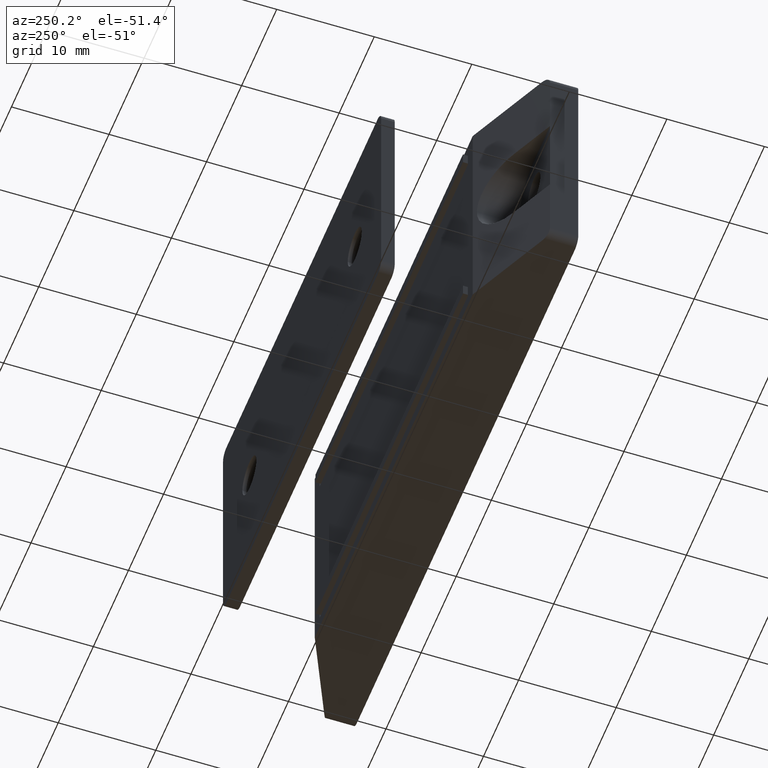
[diagram: clean part render]
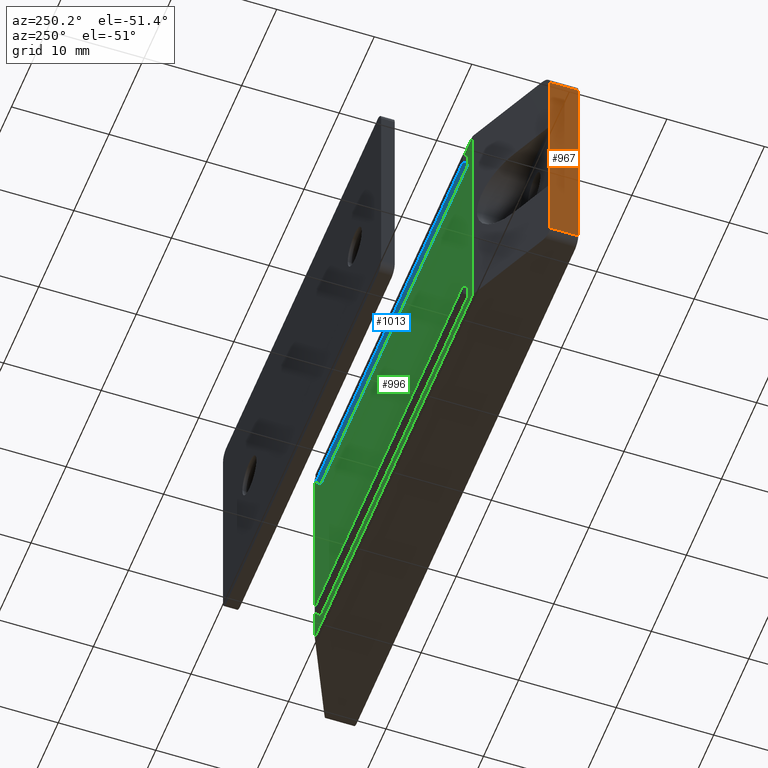
[diagram: same view with three faces highlighted in distinct colors, each labeled with its STEP entity id]
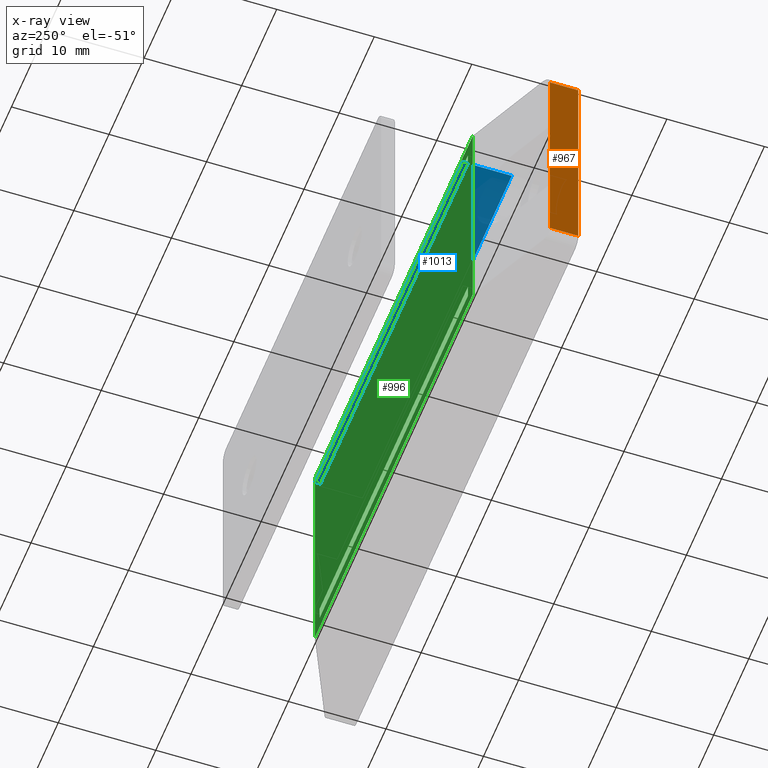
[diagram: x-ray of the same camera — body ghosted, the three highlighted faces saturated]
A machine part, auxiliary view with three faces highlighted in distinct colors.
The next image is the same camera in x-ray (body ghosted, the three faces saturated) — at least one of them is partly hidden behind the body in this view.
Their STEP definitions:

[orange] entity #967 — the highlighted planar face has unit normal (-1, 0, 0).
#58=PLANE('',#1032);
#101=FACE_OUTER_BOUND('',#159,.T.);
#159=EDGE_LOOP('',(#692,#693,#694,#695,#696,#697));
#257=LINE('',#1424,#359);
#258=LINE('',#1427,#360);
#259=LINE('',#1429,#361);
#260=LINE('',#1431,#362);
#261=LINE('',#1433,#363);
#262=LINE('',#1434,#364);
#359=VECTOR('',#1132,2.9);
#360=VECTOR('',#1135,22.5);
#361=VECTOR('',#1136,2.9);
#362=VECTOR('',#1137,6.74999999999999);
#363=VECTOR('',#1138,9.00000000000002);
#364=VECTOR('',#1139,6.74999999999999);
#466=VERTEX_POINT('',#1417);
#469=VERTEX_POINT('',#1422);
#470=VERTEX_POINT('',#1426);
#471=VERTEX_POINT('',#1428);
#472=VERTEX_POINT('',#1430);
#473=VERTEX_POINT('',#1432);
#559=EDGE_CURVE('',#469,#466,#257,.T.);
#560=EDGE_CURVE('',#469,#470,#258,.T.);
#561=EDGE_CURVE('',#471,#470,#259,.T.);
#562=EDGE_CURVE('',#471,#472,#260,.T.);
#563=EDGE_CURVE('',#472,#473,#261,.T.);
#564=EDGE_CURVE('',#473,#466,#262,.T.);
#692=ORIENTED_EDGE('',*,*,#559,.F.);
#693=ORIENTED_EDGE('',*,*,#560,.T.);
#694=ORIENTED_EDGE('',*,*,#561,.F.);
#695=ORIENTED_EDGE('',*,*,#562,.T.);
#696=ORIENTED_EDGE('',*,*,#563,.T.);
#697=ORIENTED_EDGE('',*,*,#564,.T.);
#967=ADVANCED_FACE('',(#101),#58,.T.);
#1032=AXIS2_PLACEMENT_3D('',#1425,#1133,#1134);
#1132=DIRECTION('',(1.53134210293125E-15,0.,1.));
#1133=DIRECTION('center_axis',(-1.,0.,1.53134210293125E-15));
#1134=DIRECTION('ref_axis',(0.,0.,1.));
#1135=DIRECTION('',(0.,-1.,0.));
#1136=DIRECTION('',(-1.53134210293125E-15,0.,-1.));
#1137=DIRECTION('',(0.,1.,0.));
#1138=DIRECTION('',(0.,1.,0.));
#1139=DIRECTION('',(0.,1.,0.));
#1417=CARTESIAN_POINT('',(-32.,11.25,-4.5));
#1422=CARTESIAN_POINT('',(-32.,11.25,-7.4));
#1424=CARTESIAN_POINT('',(-32.,11.25,-5.54999999999998));
#1425=CARTESIAN_POINT('Origin',(-32.,0.,-7.4));
#1426=CARTESIAN_POINT('',(-32.,-11.25,-7.4));
#1427=CARTESIAN_POINT('',(-32.,0.,-7.4));
#1428=CARTESIAN_POINT('',(-32.,-11.25,-4.5));
#1429=CARTESIAN_POINT('',(-32.,-11.25,-5.54999999999998));
#1430=CARTESIAN_POINT('',(-32.,-4.50000000000001,-4.5));
#1431=CARTESIAN_POINT('',(-32.,0.,-4.5));
#1432=CARTESIAN_POINT('',(-32.,4.50000000000001,-4.5));
#1433=CARTESIAN_POINT('',(-32.,0.,-4.5));
#1434=CARTESIAN_POINT('',(-32.,0.,-4.5));

[blue] entity #1013 — the highlighted planar face has unit normal (0, -0, -1).
#89=PLANE('',#1108);
#147=FACE_OUTER_BOUND('',#221,.T.);
#221=EDGE_LOOP('',(#908,#909,#910,#911));
#337=LINE('',#1654,#439);
#338=LINE('',#1657,#440);
#339=LINE('',#1659,#441);
#340=LINE('',#1660,#442);
#439=VECTOR('',#1364,5.);
#440=VECTOR('',#1367,42.);
#441=VECTOR('',#1368,42.);
#442=VECTOR('',#1369,5.);
#540=VERTEX_POINT('',#1647);
#543=VERTEX_POINT('',#1652);
#544=VERTEX_POINT('',#1656);
#545=VERTEX_POINT('',#1658);
#667=EDGE_CURVE('',#540,#543,#337,.T.);
#668=EDGE_CURVE('',#544,#540,#338,.T.);
#669=EDGE_CURVE('',#545,#543,#339,.T.);
#670=EDGE_CURVE('',#544,#545,#340,.T.);
#908=ORIENTED_EDGE('',*,*,#668,.T.);
#909=ORIENTED_EDGE('',*,*,#667,.T.);
#910=ORIENTED_EDGE('',*,*,#669,.F.);
#911=ORIENTED_EDGE('',*,*,#670,.F.);
#1013=ADVANCED_FACE('',(#147),#89,.T.);
#1108=AXIS2_PLACEMENT_3D('',#1655,#1365,#1366);
#1364=DIRECTION('',(0.,0.,-1.));
#1365=DIRECTION('center_axis',(0.,-1.,0.));
#1366=DIRECTION('ref_axis',(-1.,0.,0.));
#1367=DIRECTION('',(-1.,0.,0.));
#1368=DIRECTION('',(-1.,0.,0.));
#1369=DIRECTION('',(0.,0.,-1.));
#1647=CARTESIAN_POINT('',(-21.,9.55,0.6));
#1652=CARTESIAN_POINT('',(-21.,9.55,-4.4));
#1654=CARTESIAN_POINT('',(-21.,9.55,0.6));
#1655=CARTESIAN_POINT('Origin',(21.,9.55,0.6));
#1656=CARTESIAN_POINT('',(21.,9.55,0.6));
#1657=CARTESIAN_POINT('',(21.,9.55,0.6));
#1658=CARTESIAN_POINT('',(21.,9.55,-4.4));
#1659=CARTESIAN_POINT('',(21.,9.55,-4.4));
#1660=CARTESIAN_POINT('',(21.,9.55,0.6));

[green] entity #996 — the highlighted planar face has unit normal (0, 1, 0).
#48=FACE_BOUND('',#195,.T.);
#49=FACE_BOUND('',#196,.T.);
#80=PLANE('',#1075);
#130=FACE_OUTER_BOUND('',#194,.T.);
#194=EDGE_LOOP('',(#822,#823,#824,#825));
#195=EDGE_LOOP('',(#826,#827,#828,#829));
#196=EDGE_LOOP('',(#830,#831,#832,#833));
#269=LINE('',#1461,#371);
#274=LINE('',#1473,#376);
#277=LINE('',#1480,#379);
#293=LINE('',#1527,#395);
#297=LINE('',#1535,#399);
#300=LINE('',#1541,#402);
#303=LINE('',#1546,#405);
#305=LINE('',#1552,#407);
#309=LINE('',#1560,#411);
#312=LINE('',#1566,#414);
#315=LINE('',#1571,#417);
#317=LINE('',#1576,#419);
#371=VECTOR('',#1164,45.);
#376=VECTOR('',#1175,45.);
#379=VECTOR('',#1184,24.5);
#395=VECTOR('',#1234,1.4);
#399=VECTOR('',#1240,42.2);
#402=VECTOR('',#1245,1.4);
#405=VECTOR('',#1250,42.2);
#407=VECTOR('',#1256,42.2);
#411=VECTOR('',#1262,1.4);
#414=VECTOR('',#1267,42.2);
#417=VECTOR('',#1272,1.4);
#419=VECTOR('',#1280,24.5);
#483=VERTEX_POINT('',#1458);
#484=VERTEX_POINT('',#1460);
#487=VERTEX_POINT('',#1470);
#488=VERTEX_POINT('',#1472);
#502=VERTEX_POINT('',#1525);
#503=VERTEX_POINT('',#1526);
#506=VERTEX_POINT('',#1534);
#508=VERTEX_POINT('',#1540);
#510=VERTEX_POINT('',#1550);
#511=VERTEX_POINT('',#1551);
#514=VERTEX_POINT('',#1559);
#516=VERTEX_POINT('',#1565);
#577=EDGE_CURVE('',#483,#484,#269,.T.);
#583=EDGE_CURVE('',#487,#488,#274,.T.);
#587=EDGE_CURVE('',#483,#488,#277,.T.);
#609=EDGE_CURVE('',#502,#503,#293,.T.);
#613=EDGE_CURVE('',#503,#506,#297,.T.);
#616=EDGE_CURVE('',#506,#508,#300,.T.);
#619=EDGE_CURVE('',#508,#502,#303,.T.);
#621=EDGE_CURVE('',#510,#511,#305,.T.);
#625=EDGE_CURVE('',#511,#514,#309,.T.);
#628=EDGE_CURVE('',#514,#516,#312,.T.);
#631=EDGE_CURVE('',#516,#510,#315,.T.);
#633=EDGE_CURVE('',#484,#487,#317,.T.);
#822=ORIENTED_EDGE('',*,*,#587,.T.);
#823=ORIENTED_EDGE('',*,*,#583,.F.);
#824=ORIENTED_EDGE('',*,*,#633,.F.);
#825=ORIENTED_EDGE('',*,*,#577,.F.);
#826=ORIENTED_EDGE('',*,*,#616,.T.);
#827=ORIENTED_EDGE('',*,*,#619,.T.);
#828=ORIENTED_EDGE('',*,*,#609,.T.);
#829=ORIENTED_EDGE('',*,*,#613,.T.);
#830=ORIENTED_EDGE('',*,*,#628,.T.);
#831=ORIENTED_EDGE('',*,*,#631,.T.);
#832=ORIENTED_EDGE('',*,*,#621,.T.);
#833=ORIENTED_EDGE('',*,*,#625,.T.);
#996=ADVANCED_FACE('',(#130,#48,#49),#80,.T.);
#1075=AXIS2_PLACEMENT_3D('',#1575,#1278,#1279);
#1164=DIRECTION('',(-1.,0.,0.));
#1175=DIRECTION('',(1.,0.,0.));
#1184=DIRECTION('',(0.,1.,0.));
#1234=DIRECTION('',(0.,-1.,0.));
#1240=DIRECTION('',(-1.,0.,0.));
#1245=DIRECTION('',(0.,1.,0.));
#1250=DIRECTION('',(1.,0.,0.));
#1256=DIRECTION('',(1.,0.,0.));
#1262=DIRECTION('',(0.,-1.,0.));
#1267=DIRECTION('',(-1.,0.,0.));
#1272=DIRECTION('',(0.,1.,0.));
#1278=DIRECTION('center_axis',(0.,0.,1.));
#1279=DIRECTION('ref_axis',(1.,0.,0.));
#1280=DIRECTION('',(0.,1.,0.));
#1458=CARTESIAN_POINT('',(22.5,-12.25,0.));
#1460=CARTESIAN_POINT('',(-22.5,-12.25,0.));
#1461=CARTESIAN_POINT('',(-22.5,-12.25,0.));
#1470=CARTESIAN_POINT('',(-22.5,12.25,0.));
#1472=CARTESIAN_POINT('',(22.5,12.25,0.));
#1473=CARTESIAN_POINT('',(-22.5,12.25,0.));
#1480=CARTESIAN_POINT('',(22.5,0.,0.));
#1525=CARTESIAN_POINT('',(21.1,10.85,0.));
#1526=CARTESIAN_POINT('',(21.1,9.45,0.));
#1527=CARTESIAN_POINT('',(21.1,5.425,0.));
#1534=CARTESIAN_POINT('',(-21.1,9.45,0.));
#1535=CARTESIAN_POINT('',(-0.700000000000001,9.45,0.));
#1540=CARTESIAN_POINT('',(-21.1,10.85,0.));
#1541=CARTESIAN_POINT('',(-21.1,4.725,0.));
#1546=CARTESIAN_POINT('',(-21.8,10.85,0.));
#1550=CARTESIAN_POINT('',(-21.1,-9.45,0.));
#1551=CARTESIAN_POINT('',(21.1,-9.45,0.));
#1552=CARTESIAN_POINT('',(-21.8,-9.45,0.));
#1559=CARTESIAN_POINT('',(21.1,-10.85,0.));
#1560=CARTESIAN_POINT('',(21.1,-4.725,0.));
#1565=CARTESIAN_POINT('',(-21.1,-10.85,0.));
#1566=CARTESIAN_POINT('',(-0.700000000000001,-10.85,0.));
#1571=CARTESIAN_POINT('',(-21.1,-5.425,0.));
#1575=CARTESIAN_POINT('Origin',(-22.5,0.,0.));
#1576=CARTESIAN_POINT('',(-22.5,0.,0.));